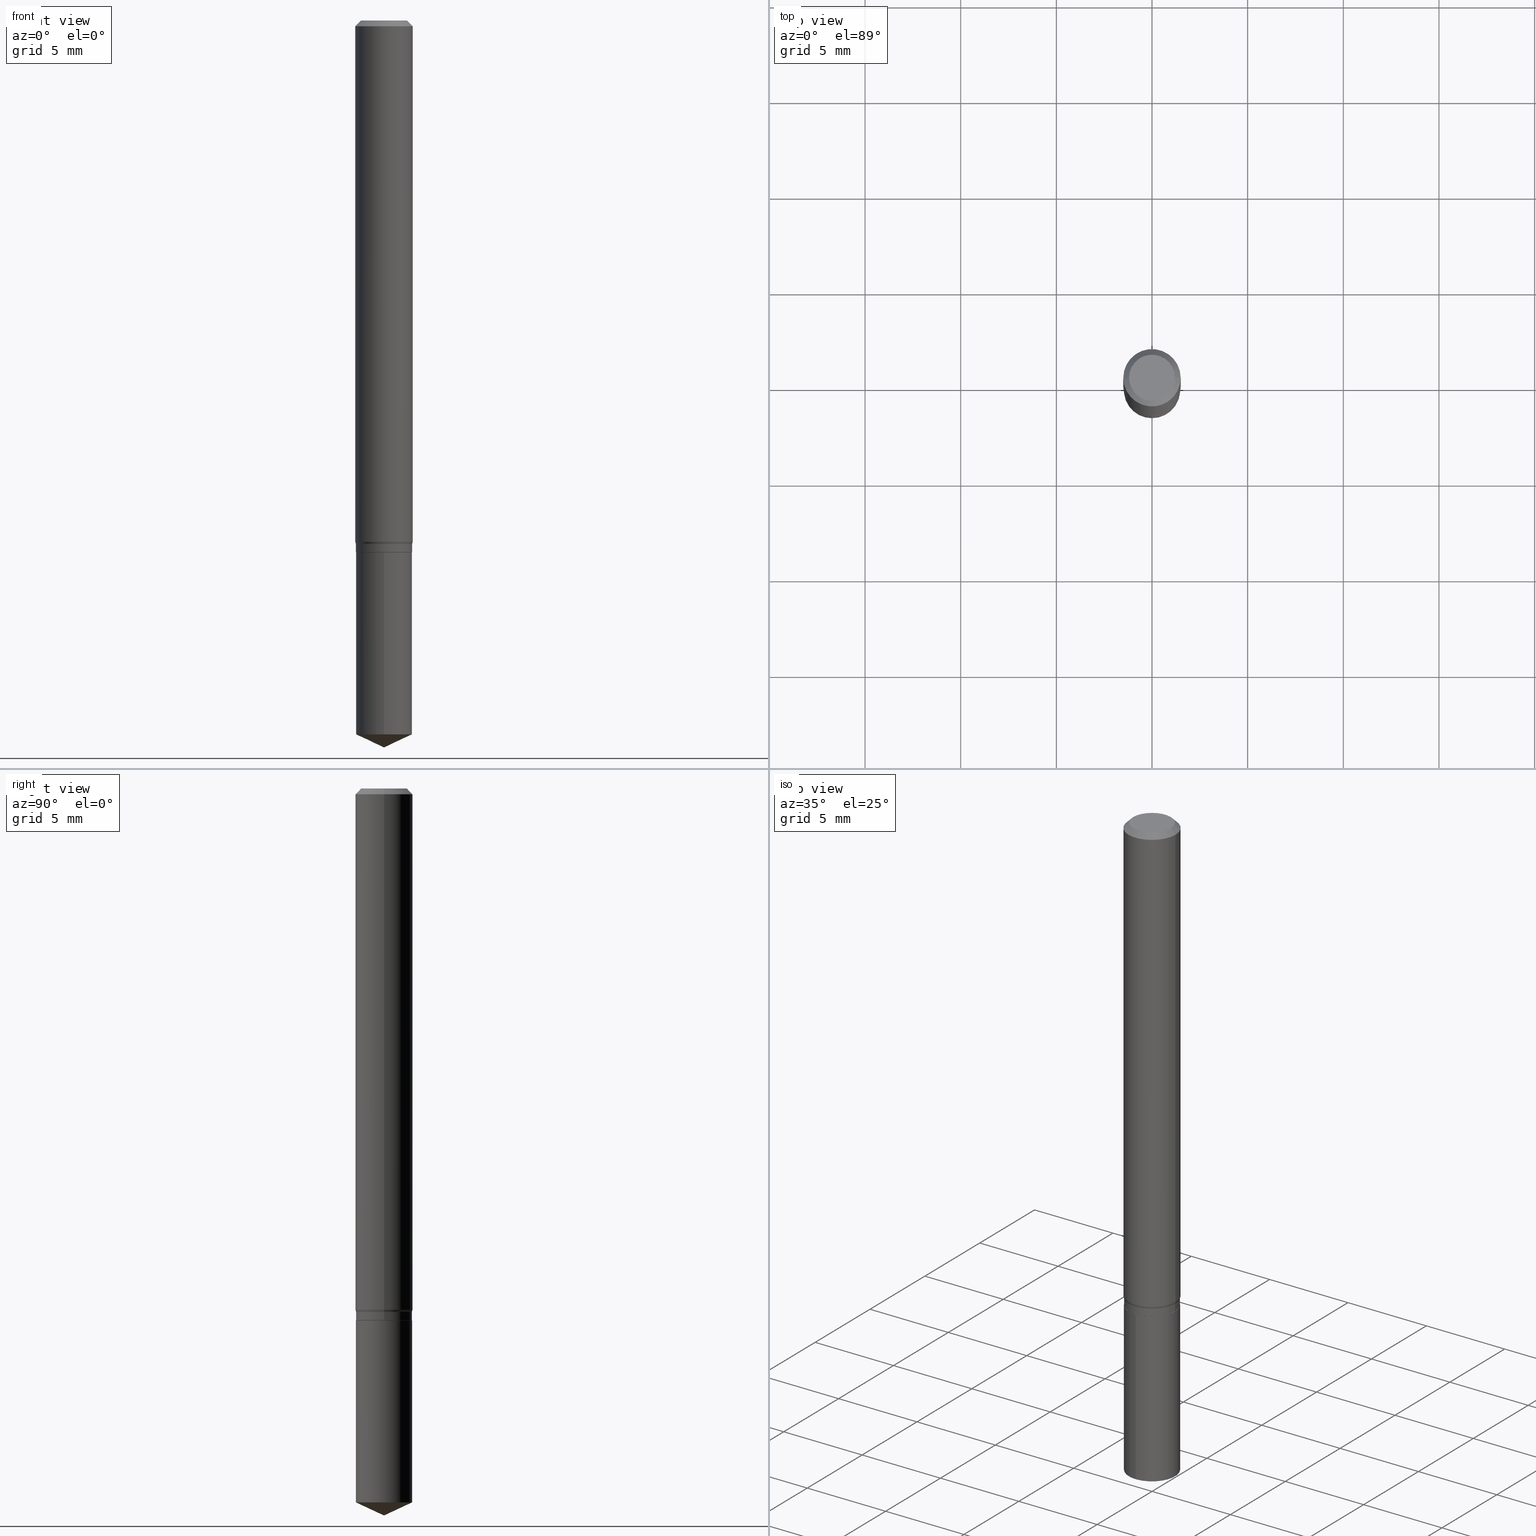
[diagram: canonical four-view strip — front | top / right | iso, engineering-drawing reading convention]
A machine part, canonical four-view strip (front | top / right | iso — engineering-drawing reading convention). The complete STEP part file that produces these views, byte-faithful:
ISO-10303-21;
HEADER;
FILE_DESCRIPTION (( 'STEP AP203' ),
    '1' );
FILE_NAME ('07713.STEP',
    '2024-04-24T01:33:04',
    ( '' ),
    ( '' ),
    'SwSTEP 2.0',
    'SolidWorks 2023',
    '' );
FILE_SCHEMA (( 'CONFIG_CONTROL_DESIGN' ));
ENDSEC;

DATA;
#1 = LINE ( 'NONE', #421, #56 ) ;
#2 = DATE_AND_TIME ( #28, #240 ) ;
#3 = CARTESIAN_POINT ( 'NONE',  ( 2.634014451142010375E-29, -3.760674550067952083E-15, -1.077099999999999946 ) ) ;
#4 = CLOSED_SHELL ( 'NONE', ( #290, #464, #446, #204, #68, #105, #379, #394, #143, #139, #327, #456 ) ) ;
#5 = CIRCLE ( 'NONE', #57, 0.04724000000000000421 ) ;
#6 = VERTEX_POINT ( 'NONE', #117 ) ;
#7 = CARTESIAN_POINT ( 'NONE',  ( 2.676565608369632355E-29, -3.821426325363822773E-15, -1.094500000000000028 ) ) ;
#8 = ORIENTED_EDGE ( 'NONE', *, *, #223, .T. ) ;
#9 = DATE_AND_TIME ( #147, #351 ) ;
#10 = CARTESIAN_POINT ( 'NONE',  ( 0.05734999999999999820, -4.221899234929130680E-15, -1.094500000000000028 ) ) ;
#11 = DIRECTION ( 'NONE',  ( 1.000000000000000000, -6.982962677686266711E-15, 4.876185090822587894E-29 ) ) ;
#12 = LINE ( 'NONE', #116, #141 ) ;
#13 = EDGE_LOOP ( 'NONE', ( #36, #296, #353, #410 ) ) ;
#14 = AXIS2_PLACEMENT_3D ( 'NONE', #237, #206, #356 ) ;
#15 = CIRCLE ( 'NONE', #374, 0.05734999999999999820 ) ;
#16 = DIRECTION ( 'NONE',  ( -2.445458899330790108E-29, 3.491495526022433205E-15, 1.000000000000000000 ) ) ;
#17 = EDGE_CURVE ( 'NONE', #61, #227, #276, .T. ) ;
#18 = CARTESIAN_POINT ( 'NONE',  ( 2.634014451142010375E-29, -3.760674550067952083E-15, -1.077099999999999946 ) ) ;
#19 = CARTESIAN_POINT ( 'NONE',  ( 2.676565608369631794E-29, -3.821426325363822773E-15, -1.094499999999999806 ) ) ;
#20 = DIRECTION ( 'NONE',  ( 1.000000000000000000, -6.982962677686265133E-15, 0.000000000000000000 ) ) ;
#21 = CARTESIAN_POINT ( 'NONE',  ( 0.05784999999999999865, -4.164638940972102208E-15, -1.077099999999999946 ) ) ;
#22 =( GEOMETRIC_REPRESENTATION_CONTEXT ( 3 ) GLOBAL_UNCERTAINTY_ASSIGNED_CONTEXT ( ( #367 ) ) GLOBAL_UNIT_ASSIGNED_CONTEXT ( ( #59, #92, #369 ) ) REPRESENTATION_CONTEXT ( 'NONE', 'WORKASPACE' ) );
#23 = MANIFOLD_SOLID_BREP ( 'Body-Move/Copy2[1]', #487 ) ;
#24 = DIRECTION ( 'NONE',  ( 1.000000000000000000, 0.000000000000000000, 0.000000000000000000 ) ) ;
#25 = FACE_OUTER_BOUND ( 'NONE', #400, .T. ) ;
#26 = ORIENTED_EDGE ( 'NONE', *, *, #416, .T. ) ;
#27 = AXIS2_PLACEMENT_3D ( 'NONE', #362, #438, #91 ) ;
#28 = CALENDAR_DATE ( 2024, 23, 4 ) ;
#29 = EDGE_LOOP ( 'NONE', ( #299, #477, #54, #334 ) ) ;
#30 = EDGE_CURVE ( 'NONE', #106, #33, #442, .T. ) ;
#31 = ORIENTED_EDGE ( 'NONE', *, *, #484, .T. ) ;
#32 = APPROVAL ( #157, 'UNSPECIFIED' ) ;
#33 = VERTEX_POINT ( 'NONE', #80 ) ;
#34 = ORIENTED_EDGE ( 'NONE', *, *, #223, .F. ) ;
#35 = APPROVAL_STATUS ( 'not_yet_approved' ) ;
#36 = ORIENTED_EDGE ( 'NONE', *, *, #317, .T. ) ;
#37 = CARTESIAN_POINT ( 'NONE',  ( -0.05734999999999999820, -3.413930066405405625E-15, -1.094500000000000028 ) ) ;
#38 = FACE_OUTER_BOUND ( 'NONE', #102, .T. ) ;
#39 = APPROVAL_ROLE ( '' ) ;
#40 = DIRECTION ( 'NONE',  ( 1.000000000000000000, -6.982962677686265133E-15, 0.000000000000000000 ) ) ;
#41 = AXIS2_PLACEMENT_3D ( 'NONE', #83, #76, #246 ) ;
#42 = EDGE_CURVE ( 'NONE', #450, #449, #1, .T. ) ;
#43 = ORIENTED_EDGE ( 'NONE', *, *, #403, .F. ) ;
#44 = DIRECTION ( 'NONE',  ( -2.445458899330790108E-29, 3.491495526022433205E-15, 1.000000000000000000 ) ) ;
#45 = CARTESIAN_POINT ( 'NONE',  ( -0.05904999999999999832, -1.473560755423358858E-15, -0.01181000000000006871 ) ) ;
#46 = CARTESIAN_POINT ( 'NONE',  ( -0.05784999999999999865, -3.349625577430734430E-15, -1.077099999999999946 ) ) ;
#47 = DIRECTION ( 'NONE',  ( -2.445468806185136597E-29, 3.491481338843145583E-15, 1.000000000000000000 ) ) ;
#48 = DIRECTION ( 'NONE',  ( 1.000000000000000000, -6.982962677686264344E-15, 0.000000000000000000 ) ) ;
#49 = DIRECTION ( 'NONE',  ( 1.000000000000000000, -6.982962677686266711E-15, 0.000000000000000000 ) ) ;
#50 = AXIS2_PLACEMENT_3D ( 'NONE', #3, #385, #40 ) ;
#51 = FACE_OUTER_BOUND ( 'NONE', #347, .T. ) ;
#52 = DIRECTION ( 'NONE',  ( -2.445468806185136597E-29, 3.491481338843145583E-15, 1.000000000000000000 ) ) ;
#53 = PLANE ( 'NONE',  #27 ) ;
#54 = ORIENTED_EDGE ( 'NONE', *, *, #414, .T. ) ;
#55 = DIRECTION ( 'NONE',  ( -6.982962677686265922E-15, -1.000000000000000000, 2.361147790548196524E-15 ) ) ;
#56 = VECTOR ( 'NONE', #243, 39.37007874015748143 ) ;
#57 = AXIS2_PLACEMENT_3D ( 'NONE', #254, #288, #364 ) ;
#58 = PERSON_AND_ORGANIZATION ( #154, #325 ) ;
#59 =( CONVERSION_BASED_UNIT ( 'INCH', #98 ) LENGTH_UNIT ( ) NAMED_UNIT ( #308 ) );
#60 = PERSON_AND_ORGANIZATION ( #154, #325 ) ;
#61 = VERTEX_POINT ( 'NONE', #391 ) ;
#62 = AXIS2_PLACEMENT_3D ( 'NONE', #211, #283, #248 ) ;
#63 = AXIS2_PLACEMENT_3D ( 'NONE', #205, #467, #48 ) ;
#64 = APPROVAL_PERSON_ORGANIZATION ( #192, #32, #420 ) ;
#65 = VERTEX_POINT ( 'NONE', #194 ) ;
#66 = EDGE_LOOP ( 'NONE', ( #483, #184 ) ) ;
#67 = VERTEX_POINT ( 'NONE', #45 ) ;
#68 = ADVANCED_FACE ( 'NONE', ( #148 ), #428, .T. ) ;
#69 = AXIS2_PLACEMENT_3D ( 'NONE', #19, #133, #212 ) ;
#70 = ORIENTED_EDGE ( 'NONE', *, *, #437, .T. ) ;
#71 = CALENDAR_DATE ( 2024, 23, 4 ) ;
#72 = DIRECTION ( 'NONE',  ( 1.000000000000000000, -6.982962677686265133E-15, 0.000000000000000000 ) ) ;
#73 = PERSON_AND_ORGANIZATION ( #154, #325 ) ;
#74 = DIRECTION ( 'NONE',  ( 1.000000000000000000, -6.982962677686264344E-15, 0.000000000000000000 ) ) ;
#75 = EDGE_CURVE ( 'NONE', #174, #186, #348, .T. ) ;
#76 = DIRECTION ( 'NONE',  ( 2.438088387897960049E-29, -3.491481338843145188E-15, -1.000000000000000000 ) ) ;
#77 = PERSON_AND_ORGANIZATION ( #154, #325 ) ;
#78 = DIRECTION ( 'NONE',  ( -0.2588190451025181305, 5.211531920934529743E-15, 0.9659258262890689783 ) ) ;
#79 = VECTOR ( 'NONE', #399, 39.37007874015748854 ) ;
#80 = CARTESIAN_POINT ( 'NONE',  ( -0.04724000000000000421, 3.504923541997677355E-16, -3.380025165670481712E-19 ) ) ;
#81 = CC_DESIGN_DATE_AND_TIME_ASSIGNMENT ( #9, #196, ( #89 ) ) ;
#82 = DIRECTION ( 'NONE',  ( 1.000000000000000000, -6.982962677686265133E-15, 0.000000000000000000 ) ) ;
#83 = CARTESIAN_POINT ( 'NONE',  ( 4.132873053354867254E-48, -5.900647395337818946E-34, -1.690012582823346072E-19 ) ) ;
#84 = CARTESIAN_POINT ( 'NONE',  ( -4.039643909041237478E-16, -0.05785000000000382198, -1.094499999999999806 ) ) ;
#85 = CARTESIAN_POINT ( 'NONE',  ( 2.888098660104663328E-31, -4.123439461173779030E-17, -0.01181000000000006871 ) ) ;
#86 = LINE ( 'NONE', #122, #435 ) ;
#87 = DIRECTION ( 'NONE',  ( -2.445468806185136597E-29, 3.491481338843145583E-15, 1.000000000000000000 ) ) ;
#88 = AXIS2_PLACEMENT_3D ( 'NONE', #202, #16, #165 ) ;
#89 = SECURITY_CLASSIFICATION ( '', '', #335 ) ;
#90 = CYLINDRICAL_SURFACE ( 'NONE', #466, 0.05905000000000006771 ) ;
#91 = DIRECTION ( 'NONE',  ( 6.982962677686265922E-15, 1.000000000000000000, -3.491495526022433599E-15 ) ) ;
#92 =( NAMED_UNIT ( * ) PLANE_ANGLE_UNIT ( ) SI_UNIT ( $, .RADIAN. ) );
#93 = CARTESIAN_POINT ( 'NONE',  ( -0.05905000000000006771, 4.195754854663396409E-16, -2.904631170795525045E-30 ) ) ;
#94 = CARTESIAN_POINT ( 'NONE',  ( 0.000000000000000000, 0.000000000000000000, 0.000000000000000000 ) ) ;
#95 = VERTEX_POINT ( 'NONE', #164 ) ;
#96 = CONICAL_SURFACE ( 'NONE', #50, 0.05784999999999999865, 0.2617993877991466878 ) ;
#97 = EDGE_CURVE ( 'NONE', #65, #6, #249, .T. ) ;
#98 = LENGTH_MEASURE_WITH_UNIT ( LENGTH_MEASURE( 0.02539999999999999897 ), #404 );
#99 = ORIENTED_EDGE ( 'NONE', *, *, #42, .F. ) ;
#100 = PRODUCT_DEFINITION_SHAPE ( 'NONE', 'NONE',  #432 ) ;
#101 = CC_DESIGN_PERSON_AND_ORGANIZATION_ASSIGNMENT ( #149, #461, ( #432 ) ) ;
#102 = EDGE_LOOP ( 'NONE', ( #112, #229 ) ) ;
#103 = CONICAL_SURFACE ( 'NONE', #338, 0.05734999999999999820, 0.7853981633972775267 ) ;
#104 = CC_DESIGN_SECURITY_CLASSIFICATION ( #89, ( #222 ) ) ;
#105 = ADVANCED_FACE ( 'NONE', ( #393 ), #270, .T. ) ;
#106 = VERTEX_POINT ( 'NONE', #307 ) ;
#107 = ORIENTED_EDGE ( 'NONE', *, *, #242, .T. ) ;
#108 = EDGE_CURVE ( 'NONE', #339, #65, #281, .T. ) ;
#109 = EDGE_LOOP ( 'NONE', ( #70, #341, #132, #415 ) ) ;
#110 = CALENDAR_DATE ( 2024, 23, 4 ) ;
#111 = CONICAL_SURFACE ( 'NONE', #447, 84.42940631927430672, 1.134464013796315784 ) ;
#112 = ORIENTED_EDGE ( 'NONE', *, *, #225, .T. ) ;
#113 = SHAPE_DEFINITION_REPRESENTATION ( #100, #226 ) ;
#114 = CARTESIAN_POINT ( 'NONE',  ( 2.675342873966538993E-29, -3.819680584694400481E-15, -1.093999999999999861 ) ) ;
#115 = CARTESIAN_POINT ( 'NONE',  ( 2.634014451142010375E-29, -3.760674550067952083E-15, -1.077099999999999946 ) ) ;
#116 = CARTESIAN_POINT ( 'NONE',  ( 0.05784999999999999865, -4.039643909041504704E-16, 2.820868264797948733E-30 ) ) ;
#117 = CARTESIAN_POINT ( 'NONE',  ( -0.05784999999999999865, -3.379128594743958630E-15, -1.093999999999999861 ) ) ;
#118 = DIRECTION ( 'NONE',  ( 1.000000000000000000, -6.982962677686266711E-15, 4.876176775795936353E-29 ) ) ;
#119 = CONICAL_SURFACE ( 'NONE', #256, 84.42940631927430672, 1.134464013796315784 ) ;
#120 = CC_DESIGN_APPROVAL ( #387, ( #89 ) ) ;
#121 = PLANE ( 'NONE',  #41 ) ;
#122 = CARTESIAN_POINT ( 'NONE',  ( 0.05784999999999999865, -4.164638940972102208E-15, -1.077099999999999946 ) ) ;
#123 = DIRECTION ( 'NONE',  ( 1.000000000000000000, -6.982962677686265133E-15, 0.000000000000000000 ) ) ;
#124 = CARTESIAN_POINT ( 'NONE',  ( 8.562420094366031687E-30, -6.428233325420959968E-15, -1.094500000000000028 ) ) ;
#125 = LINE ( 'NONE', #171, #79 ) ;
#126 = CARTESIAN_POINT ( 'NONE',  ( 4.110489726372537918E-16, 0.05784999999999485693, -1.469124101975733732 ) ) ;
#127 = CARTESIAN_POINT ( 'NONE',  ( -0.05784999999999999865, -3.379128594743958630E-15, -1.077099999999999946 ) ) ;
#128 = CIRCLE ( 'NONE', #88, 0.05784999999999999865 ) ;
#129 = CONICAL_SURFACE ( 'NONE', #163, 0.05904999999999999832, 0.7853981633974452814 ) ;
#130 = EDGE_CURVE ( 'NONE', #33, #67, #384, .T. ) ;
#131 = LINE ( 'NONE', #93, #406 ) ;
#132 = ORIENTED_EDGE ( 'NONE', *, *, #244, .F. ) ;
#133 = DIRECTION ( 'NONE',  ( -2.445458899330790108E-29, 3.491495526022433205E-15, 1.000000000000000000 ) ) ;
#134 = FACE_OUTER_BOUND ( 'NONE', #151, .T. ) ;
#135 = VECTOR ( 'NONE', #366, 39.37007874015748143 ) ;
#136 = ORIENTED_EDGE ( 'NONE', *, *, #368, .T. ) ;
#137 = PERSON_AND_ORGANIZATION_ROLE ( 'design_supplier' ) ;
#138 = EDGE_LOOP ( 'NONE', ( #413, #233, #295, #298 ) ) ;
#139 = ADVANCED_FACE ( 'NONE', ( #38 ), #121, .F. ) ;
#140 = EDGE_LOOP ( 'NONE', ( #224, #26, #445 ) ) ;
#141 = VECTOR ( 'NONE', #274, 39.37007874015748143 ) ;
#142 = EDGE_CURVE ( 'NONE', #386, #449, #479, .T. ) ;
#143 = ADVANCED_FACE ( 'NONE', ( #326 ), #268, .T. ) ;
#144 = EDGE_LOOP ( 'NONE', ( #337, #378, #31, #273 ) ) ;
#145 = CC_DESIGN_PERSON_AND_ORGANIZATION_ASSIGNMENT ( #58, #215, ( #181 ) ) ;
#146 = ORIENTED_EDGE ( 'NONE', *, *, #414, .F. ) ;
#147 = CALENDAR_DATE ( 2024, 23, 4 ) ;
#148 = FACE_OUTER_BOUND ( 'NONE', #267, .T. ) ;
#149 = PERSON_AND_ORGANIZATION ( #154, #325 ) ;
#150 = FACE_OUTER_BOUND ( 'NONE', #144, .T. ) ;
#151 = EDGE_LOOP ( 'NONE', ( #488, #336, #262, #43 ) ) ;
#152 = PERSON_AND_ORGANIZATION_ROLE ( 'creator' ) ;
#153 = DESIGN_CONTEXT ( 'detailed design', #346, 'design' ) ;
#154 = PERSON ( 'UNSPECIFIED', 'UNSPECIFIED', 'UNSPECIFIED', ('UNSPECIFIED'), ('UNSPECIFIED'), ('UNSPECIFIED') ) ;
#155 = DIRECTION ( 'NONE',  ( -6.982962677686268288E-15, -1.000000000000000000, 3.520397390770455053E-15 ) ) ;
#156 = CARTESIAN_POINT ( 'NONE',  ( 2.623062514542399904E-29, -3.745038087167660552E-15, -1.072621539030916837 ) ) ;
#157 = APPROVAL_STATUS ( 'not_yet_approved' ) ;
#158 = DIRECTION ( 'NONE',  ( -2.445458899330790108E-29, 3.491495526022433599E-15, 1.000000000000000000 ) ) ;
#159 = CARTESIAN_POINT ( 'NONE',  ( 2.675342873966538993E-29, -3.819680584694400481E-15, -1.093999999999999861 ) ) ;
#160 = FACE_OUTER_BOUND ( 'NONE', #13, .T. ) ;
#161 = VECTOR ( 'NONE', #436, 39.37007874015748143 ) ;
#162 = EDGE_CURVE ( 'NONE', #67, #407, #478, .T. ) ;
#163 = AXIS2_PLACEMENT_3D ( 'NONE', #439, #253, #323 ) ;
#164 = CARTESIAN_POINT ( 'NONE',  ( -4.039643909041145280E-16, -0.05785000000000512649, -1.469124101975733065 ) ) ;
#165 = DIRECTION ( 'NONE',  ( -6.982962677686265922E-15, -1.000000000000000000, 2.361147790548196524E-15 ) ) ;
#166 = DIRECTION ( 'NONE',  ( -2.445468806185136877E-29, 3.491481338843145188E-15, 1.000000000000000000 ) ) ;
#167 = CC_DESIGN_PERSON_AND_ORGANIZATION_ASSIGNMENT ( #77, #300, ( #89 ) ) ;
#168 = CARTESIAN_POINT ( 'NONE',  ( 0.000000000000000000, 0.000000000000000000, 0.000000000000000000 ) ) ;
#169 = DIRECTION ( 'NONE',  ( -2.445468806185136597E-29, 3.491481338843145583E-15, 1.000000000000000000 ) ) ;
#170 = FACE_OUTER_BOUND ( 'NONE', #140, .T. ) ;
#171 = CARTESIAN_POINT ( 'NONE',  ( 3.658672935554494692E-29, -5.223595400746700193E-15, -1.496099999999999985 ) ) ;
#172 = CONICAL_SURFACE ( 'NONE', #333, 0.05784999999999999865, 0.2617993877991466878 ) ;
#173 = CC_DESIGN_PERSON_AND_ORGANIZATION_ASSIGNMENT ( #342, #137, ( #222 ) ) ;
#174 = VERTEX_POINT ( 'NONE', #127 ) ;
#175 = CARTESIAN_POINT ( 'NONE',  ( 2.676565608369632355E-29, -3.821426325363822773E-15, -1.094500000000000028 ) ) ;
#176 = DIRECTION ( 'NONE',  ( -2.445468806185136597E-29, 3.491481338843145583E-15, 1.000000000000000000 ) ) ;
#177 = AXIS2_PLACEMENT_3D ( 'NONE', #159, #465, #123 ) ;
#178 = VECTOR ( 'NONE', #245, 39.37007874015748854 ) ;
#179 = ORIENTED_EDGE ( 'NONE', *, *, #260, .T. ) ;
#180 = AXIS2_PLACEMENT_3D ( 'NONE', #94, #398, #24 ) ;
#181 = PRODUCT ( '07713', '07713', '', ( #289 ) ) ;
#182 = EDGE_CURVE ( 'NONE', #61, #67, #131, .T. ) ;
#183 = ORIENTED_EDGE ( 'NONE', *, *, #244, .T. ) ;
#184 = ORIENTED_EDGE ( 'NONE', *, *, #429, .F. ) ;
#185 = MANIFOLD_SOLID_BREP ( 'Body-Move/Copy2[2]', #4 ) ;
#186 = VERTEX_POINT ( 'NONE', #21 ) ;
#187 = CIRCLE ( 'NONE', #349, 0.05784999999999999865 ) ;
#188 = LOCAL_TIME ( 21, 33, 4.000000000000000000, #266 ) ;
#189 = ORIENTED_EDGE ( 'NONE', *, *, #287, .T. ) ;
#190 = DATE_AND_TIME ( #232, #297 ) ;
#191 = CARTESIAN_POINT ( 'NONE',  ( 2.676565608369631794E-29, -3.821426325363822773E-15, -1.094499999999999806 ) ) ;
#192 = PERSON_AND_ORGANIZATION ( #154, #325 ) ;
#193 = CYLINDRICAL_SURFACE ( 'NONE', #332, 0.05905000000000006771 ) ;
#194 = CARTESIAN_POINT ( 'NONE',  ( 0.05784999999999999865, -4.223644975598551395E-15, -1.093999999999999861 ) ) ;
#195 = EDGE_CURVE ( 'NONE', #95, #450, #251, .T. ) ;
#196 = DATE_TIME_ROLE ( 'classification_date' ) ;
#197 = AXIS2_PLACEMENT_3D ( 'NONE', #425, #382, #11 ) ;
#198 = CIRCLE ( 'NONE', #261, 0.05905000000000013016 ) ;
#199 = CARTESIAN_POINT ( 'NONE',  ( 0.000000000000000000, 0.000000000000000000, 0.000000000000000000 ) ) ;
#200 = ORIENTED_EDGE ( 'NONE', *, *, #416, .F. ) ;
#201 = DATE_TIME_ROLE ( 'creation_date' ) ;
#202 = CARTESIAN_POINT ( 'NONE',  ( 2.676565608369631794E-29, -3.821426325363822773E-15, -1.094499999999999806 ) ) ;
#203 = EDGE_LOOP ( 'NONE', ( #431, #444, #183, #451 ) ) ;
#204 = ADVANCED_FACE ( 'NONE', ( #51 ), #172, .T. ) ;
#205 = CARTESIAN_POINT ( 'NONE',  ( 2.676565608369632355E-29, -3.821426325363822773E-15, -1.094500000000000028 ) ) ;
#206 = DIRECTION ( 'NONE',  ( -2.445468806185136597E-29, 3.491481338843145583E-15, 1.000000000000000000 ) ) ;
#207 = DIRECTION ( 'NONE',  ( -6.982962677686265922E-15, -1.000000000000000000, 4.722295581096393049E-15 ) ) ;
#208 = AXIS2_PLACEMENT_3D ( 'NONE', #318, #47, #358 ) ;
#209 = AXIS2_PLACEMENT_3D ( 'NONE', #241, #235, #392 ) ;
#210 = CARTESIAN_POINT ( 'NONE',  ( 3.592693452449994614E-29, -5.129424701352268102E-15, -1.469124101975733288 ) ) ;
#211 = CARTESIAN_POINT ( 'NONE',  ( 2.888098660104663328E-31, -4.123439461173779030E-17, -0.01181000000000006871 ) ) ;
#212 = DIRECTION ( 'NONE',  ( -6.982962677686265922E-15, -1.000000000000000000, 2.361147790548196524E-15 ) ) ;
#213 = CARTESIAN_POINT ( 'NONE',  ( 0.05905000000000013016, -4.157382033285035472E-15, -1.072621539030916837 ) ) ;
#214 = DIRECTION ( 'NONE',  ( 1.000000000000000000, -6.982962677686265133E-15, 0.000000000000000000 ) ) ;
#215 = PERSON_AND_ORGANIZATION_ROLE ( 'design_owner' ) ;
#216 = FACE_OUTER_BOUND ( 'NONE', #373, .T. ) ;
#217 = CC_DESIGN_PERSON_AND_ORGANIZATION_ASSIGNMENT ( #73, #152, ( #222 ) ) ;
#218 = ADVANCED_FACE ( 'NONE', ( #285 ), #53, .F. ) ;
#219 = VECTOR ( 'NONE', #458, 39.37007874015748143 ) ;
#220 = CIRCLE ( 'NONE', #63, 0.05734999999999999820 ) ;
#221 = ORIENTED_EDGE ( 'NONE', *, *, #368, .F. ) ;
#222 = PRODUCT_DEFINITION_FORMATION_WITH_SPECIFIED_SOURCE ( 'ANY', '', #181, .NOT_KNOWN. ) ;
#223 = EDGE_CURVE ( 'NONE', #186, #174, #426, .T. ) ;
#224 = ORIENTED_EDGE ( 'NONE', *, *, #242, .F. ) ;
#225 = EDGE_CURVE ( 'NONE', #33, #106, #5, .T. ) ;
#226 = ADVANCED_BREP_SHAPE_REPRESENTATION ( '07713', ( #23, #185, #180 ), #22 ) ;
#227 = VERTEX_POINT ( 'NONE', #213 ) ;
#228 = APPROVAL ( #35, 'UNSPECIFIED' ) ;
#229 = ORIENTED_EDGE ( 'NONE', *, *, #30, .T. ) ;
#230 = COORDINATED_UNIVERSAL_TIME_OFFSET ( 5, 0, .BEHIND. ) ;
#231 = CARTESIAN_POINT ( 'NONE',  ( 0.05734999999999999820, -4.221899234929130680E-15, -1.094500000000000028 ) ) ;
#232 = CALENDAR_DATE ( 2024, 23, 4 ) ;
#233 = ORIENTED_EDGE ( 'NONE', *, *, #225, .F. ) ;
#234 = APPLICATION_PROTOCOL_DEFINITION ( 'international standard', 'config_control_design', 1994, #346 ) ;
#235 = DIRECTION ( 'NONE',  ( -2.445468806185136597E-29, 3.491481338843145583E-15, 1.000000000000000000 ) ) ;
#236 = EDGE_CURVE ( 'NONE', #106, #407, #252, .T. ) ;
#237 = CARTESIAN_POINT ( 'NONE',  ( 0.000000000000000000, 0.000000000000000000, 0.000000000000000000 ) ) ;
#238 = DATE_AND_TIME ( #71, #370 ) ;
#239 = AXIS2_PLACEMENT_3D ( 'NONE', #124, #316, #433 ) ;
#240 = LOCAL_TIME ( 21, 33, 4.000000000000000000, #381 ) ;
#241 = CARTESIAN_POINT ( 'NONE',  ( 2.676565608369632355E-29, -3.821426325363822773E-15, -1.094500000000000028 ) ) ;
#242 = EDGE_CURVE ( 'NONE', #294, #450, #125, .T. ) ;
#243 = DIRECTION ( 'NONE',  ( -2.445458899330790108E-29, 3.491495526022433599E-15, 1.000000000000000000 ) ) ;
#244 = EDGE_CURVE ( 'NONE', #407, #67, #303, .T. ) ;
#245 = DIRECTION ( 'NONE',  ( -6.328713451373372534E-15, -0.9063077870366490485, 0.4226182617407011066 ) ) ;
#246 = DIRECTION ( 'NONE',  ( -1.000000000000000000, 6.982962677686265922E-15, -4.876176775795935793E-29 ) ) ;
#247 = CARTESIAN_POINT ( 'NONE',  ( -0.05784999999999999865, 4.110489726372179479E-16, -2.845603949712462575E-30 ) ) ;
#248 = DIRECTION ( 'NONE',  ( -1.000000000000000000, 6.982962677686266711E-15, 0.000000000000000000 ) ) ;
#249 = CIRCLE ( 'NONE', #177, 0.05784999999999999865 ) ;
#250 = DIRECTION ( 'NONE',  ( -2.445458899330790108E-29, 3.491495526022433205E-15, 1.000000000000000000 ) ) ;
#251 = CIRCLE ( 'NONE', #388, 0.05784999999999999865 ) ;
#252 = LINE ( 'NONE', #320, #135 ) ;
#253 = DIRECTION ( 'NONE',  ( 2.445468806185136597E-29, -3.491481338843145583E-15, -1.000000000000000000 ) ) ;
#254 = CARTESIAN_POINT ( 'NONE',  ( 8.265746106709734507E-48, -1.180129479067563789E-33, -3.380025165646692144E-19 ) ) ;
#255 = DIRECTION ( 'NONE',  ( -6.982962677686265922E-15, -1.000000000000000000, 4.722295581096393049E-15 ) ) ;
#256 = AXIS2_PLACEMENT_3D ( 'NONE', #328, #473, #330 ) ;
#257 = ORIENTED_EDGE ( 'NONE', *, *, #287, .F. ) ;
#258 = CARTESIAN_POINT ( 'NONE',  ( 0.05905000000000006771, -4.123439461173745257E-16, 2.879382386107503723E-30 ) ) ;
#259 = VERTEX_POINT ( 'NONE', #422 ) ;
#260 = EDGE_CURVE ( 'NONE', #95, #386, #457, .T. ) ;
#261 = AXIS2_PLACEMENT_3D ( 'NONE', #284, #52, #214 ) ;
#262 = ORIENTED_EDGE ( 'NONE', *, *, #108, .T. ) ;
#263 = CC_DESIGN_APPROVAL ( #228, ( #222 ) ) ;
#264 = ORIENTED_EDGE ( 'NONE', *, *, #195, .F. ) ;
#265 = ORIENTED_EDGE ( 'NONE', *, *, #437, .F. ) ;
#266 = COORDINATED_UNIVERSAL_TIME_OFFSET ( 5, 0, .BEHIND. ) ;
#267 = EDGE_LOOP ( 'NONE', ( #377, #405, #34, #146 ) ) ;
#268 = CONICAL_SURFACE ( 'NONE', #62, 0.05904999999999999832, 0.7853981633974452814 ) ;
#269 = AXIS2_PLACEMENT_3D ( 'NONE', #191, #434, #402 ) ;
#270 = CYLINDRICAL_SURFACE ( 'NONE', #208, 0.05784999999999999865 ) ;
#271 = ADVANCED_FACE ( 'NONE', ( #319 ), #111, .T. ) ;
#272 = CARTESIAN_POINT ( 'NONE',  ( 0.05904999999999999832, -4.535783407291118600E-16, -0.01181000000000006871 ) ) ;
#273 = ORIENTED_EDGE ( 'NONE', *, *, #162, .F. ) ;
#274 = DIRECTION ( 'NONE',  ( -2.445468806185136877E-29, 3.491481338843145188E-15, 1.000000000000000000 ) ) ;
#275 = DIRECTION ( 'NONE',  ( 1.000000000000000000, -6.982962677686265133E-15, 0.000000000000000000 ) ) ;
#276 = CIRCLE ( 'NONE', #291, 0.05905000000000013016 ) ;
#277 = VECTOR ( 'NONE', #158, 39.37007874015748143 ) ;
#278 = LINE ( 'NONE', #37, #411 ) ;
#279 = ORIENTED_EDGE ( 'NONE', *, *, #42, .T. ) ;
#280 = LINE ( 'NONE', #424, #178 ) ;
#281 = LINE ( 'NONE', #231, #219 ) ;
#282 = DIRECTION ( 'NONE',  ( -0.7071067811864267805, 7.493145998869918709E-15, 0.7071067811866682540 ) ) ;
#283 = DIRECTION ( 'NONE',  ( 2.445468806185136597E-29, -3.491481338843145583E-15, -1.000000000000000000 ) ) ;
#284 = CARTESIAN_POINT ( 'NONE',  ( 2.623062514542399904E-29, -3.745038087167660552E-15, -1.072621539030916837 ) ) ;
#285 = FACE_OUTER_BOUND ( 'NONE', #311, .T. ) ;
#286 = FACE_OUTER_BOUND ( 'NONE', #109, .T. ) ;
#287 = EDGE_CURVE ( 'NONE', #449, #386, #128, .T. ) ;
#288 = DIRECTION ( 'NONE',  ( -2.445468806185136597E-29, 3.491481338843145583E-15, 1.000000000000000000 ) ) ;
#289 = MECHANICAL_CONTEXT ( 'NONE', #409, 'mechanical' ) ;
#290 = ADVANCED_FACE ( 'NONE', ( #160 ), #418, .T. ) ;
#291 = AXIS2_PLACEMENT_3D ( 'NONE', #156, #460, #275 ) ;
#292 = AXIS2_PLACEMENT_3D ( 'NONE', #321, #472, #361 ) ;
#293 = DIRECTION ( 'NONE',  ( -2.445458899330790108E-29, 3.491495526022433205E-15, 1.000000000000000000 ) ) ;
#294 = VERTEX_POINT ( 'NONE', #430 ) ;
#295 = ORIENTED_EDGE ( 'NONE', *, *, #130, .T. ) ;
#296 = ORIENTED_EDGE ( 'NONE', *, *, #340, .T. ) ;
#297 = LOCAL_TIME ( 21, 33, 4.000000000000000000, #312 ) ;
#298 = ORIENTED_EDGE ( 'NONE', *, *, #162, .T. ) ;
#299 = ORIENTED_EDGE ( 'NONE', *, *, #329, .F. ) ;
#300 = PERSON_AND_ORGANIZATION_ROLE ( 'classification_officer' ) ;
#301 = DIRECTION ( 'NONE',  ( -2.445468806185136597E-29, 3.491481338843145583E-15, 1.000000000000000000 ) ) ;
#302 = AXIS2_PLACEMENT_3D ( 'NONE', #85, #396, #49 ) ;
#303 = CIRCLE ( 'NONE', #292, 0.05904999999999999832 ) ;
#304 = APPROVAL_ROLE ( '' ) ;
#305 = APPROVAL_PERSON_ORGANIZATION ( #60, #228, #304 ) ;
#306 = LINE ( 'NONE', #247, #480 ) ;
#307 = CARTESIAN_POINT ( 'NONE',  ( 0.04724000000000000421, -3.852183633974369345E-16, -3.380025165621689721E-19 ) ) ;
#308 = DIMENSIONAL_EXPONENTS ( 1.000000000000000000, 0.000000000000000000, 0.000000000000000000, 0.000000000000000000, 0.000000000000000000, 0.000000000000000000, 0.000000000000000000 ) ;
#309 = EDGE_CURVE ( 'NONE', #450, #95, #315, .T. ) ;
#310 = LINE ( 'NONE', #46, #453 ) ;
#311 = EDGE_LOOP ( 'NONE', ( #376, #189 ) ) ;
#312 = COORDINATED_UNIVERSAL_TIME_OFFSET ( 5, 0, .BEHIND. ) ;
#313 = DIRECTION ( 'NONE',  ( -2.445468806185136597E-29, 3.491481338843145583E-15, 1.000000000000000000 ) ) ;
#314 = ORIENTED_EDGE ( 'NONE', *, *, #75, .T. ) ;
#315 = CIRCLE ( 'NONE', #397, 0.05784999999999999865 ) ;
#316 = DIRECTION ( 'NONE',  ( -2.438088387897960049E-29, 3.491481338843145188E-15, 1.000000000000000000 ) ) ;
#317 = EDGE_CURVE ( 'NONE', #339, #259, #15, .T. ) ;
#318 = CARTESIAN_POINT ( 'NONE',  ( 0.000000000000000000, 0.000000000000000000, 0.000000000000000000 ) ) ;
#319 = FACE_OUTER_BOUND ( 'NONE', #489, .T. ) ;
#320 = CARTESIAN_POINT ( 'NONE',  ( 0.05904999999999999832, -4.463468013801466955E-16, -0.01181000000000006871 ) ) ;
#321 = CARTESIAN_POINT ( 'NONE',  ( 2.888098660104663328E-31, -4.123439461173779030E-17, -0.01181000000000006871 ) ) ;
#322 = AXIS2_PLACEMENT_3D ( 'NONE', #115, #301, #72 ) ;
#323 = DIRECTION ( 'NONE',  ( -1.000000000000000000, 6.982962677686266711E-15, 0.000000000000000000 ) ) ;
#324 = AXIS2_PLACEMENT_3D ( 'NONE', #408, #293, #55 ) ;
#325 = ORGANIZATION ( 'UNSPECIFIED', 'UNSPECIFIED', '' ) ;
#326 = FACE_OUTER_BOUND ( 'NONE', #138, .T. ) ;
#327 = ADVANCED_FACE ( 'NONE', ( #427 ), #469, .F. ) ;
#328 = CARTESIAN_POINT ( 'NONE',  ( -9.261924752013118283E-28, 1.322368428517963298E-13, 37.87397874015748300 ) ) ;
#329 = EDGE_CURVE ( 'NONE', #6, #174, #306, .T. ) ;
#330 = DIRECTION ( 'NONE',  ( -6.982962677686268288E-15, -1.000000000000000000, 3.520397390770455053E-15 ) ) ;
#331 = CARTESIAN_POINT ( 'NONE',  ( 4.110489726372538411E-16, 0.05784999999999617531, -1.094500000000000028 ) ) ;
#332 = AXIS2_PLACEMENT_3D ( 'NONE', #199, #352, #118 ) ;
#333 = AXIS2_PLACEMENT_3D ( 'NONE', #474, #169, #20 ) ;
#334 = ORIENTED_EDGE ( 'NONE', *, *, #75, .F. ) ;
#335 = SECURITY_CLASSIFICATION_LEVEL ( 'unclassified' ) ;
#336 = ORIENTED_EDGE ( 'NONE', *, *, #429, .T. ) ;
#337 = ORIENTED_EDGE ( 'NONE', *, *, #182, .F. ) ;
#338 = AXIS2_PLACEMENT_3D ( 'NONE', #175, #471, #443 ) ;
#339 = VERTEX_POINT ( 'NONE', #10 ) ;
#340 = EDGE_CURVE ( 'NONE', #259, #6, #278, .T. ) ;
#341 = ORIENTED_EDGE ( 'NONE', *, *, #182, .T. ) ;
#342 = PERSON_AND_ORGANIZATION ( #154, #325 ) ;
#343 = CC_DESIGN_DATE_AND_TIME_ASSIGNMENT ( #238, #201, ( #432 ) ) ;
#344 = DIRECTION ( 'NONE',  ( -0.7071067811865453523, 2.468850131082234184E-15, -0.7071067811865496822 ) ) ;
#345 = FACE_OUTER_BOUND ( 'NONE', #475, .T. ) ;
#346 = APPLICATION_CONTEXT ( 'configuration controlled 3d designs of mechanical parts and assemblies' ) ;
#347 = EDGE_LOOP ( 'NONE', ( #8, #454, #265, #221 ) ) ;
#348 = CIRCLE ( 'NONE', #322, 0.05784999999999999865 ) ;
#349 = AXIS2_PLACEMENT_3D ( 'NONE', #114, #395, #82 ) ;
#350 = EDGE_CURVE ( 'NONE', #174, #61, #310, .T. ) ;
#351 = LOCAL_TIME ( 21, 33, 4.000000000000000000, #490 ) ;
#352 = DIRECTION ( 'NONE',  ( -2.445468806185136597E-29, 3.491481338843145583E-15, 1.000000000000000000 ) ) ;
#353 = ORIENTED_EDGE ( 'NONE', *, *, #97, .F. ) ;
#354 = APPROVAL_DATE_TIME ( #2, #32 ) ;
#355 = DIRECTION ( 'NONE',  ( -2.445468806185136877E-29, 3.491481338843145188E-15, 1.000000000000000000 ) ) ;
#356 = DIRECTION ( 'NONE',  ( 1.000000000000000000, -6.982962677686265922E-15, 4.876176775795935793E-29 ) ) ;
#357 = CARTESIAN_POINT ( 'NONE',  ( 3.592693452449994614E-29, -5.129424701352268102E-15, -1.469124101975733288 ) ) ;
#358 = DIRECTION ( 'NONE',  ( 1.000000000000000000, -6.982962677686265922E-15, 4.876176775795935793E-29 ) ) ;
#359 = VECTOR ( 'NONE', #344, 39.37007874015748143 ) ;
#360 = AXIS2_PLACEMENT_3D ( 'NONE', #18, #87, #470 ) ;
#361 = DIRECTION ( 'NONE',  ( 1.000000000000000000, -6.982962677686266711E-15, 0.000000000000000000 ) ) ;
#362 = CARTESIAN_POINT ( 'NONE',  ( 2.676565608369631794E-29, -3.821426325363822773E-15, -1.094499999999999806 ) ) ;
#363 = DIRECTION ( 'NONE',  ( 1.000000000000000000, -6.982962677686266711E-15, 4.876176775795936353E-29 ) ) ;
#364 = DIRECTION ( 'NONE',  ( 1.000000000000000000, -6.982962677686266711E-15, 4.876185090822587894E-29 ) ) ;
#365 = FACE_OUTER_BOUND ( 'NONE', #203, .T. ) ;
#366 = DIRECTION ( 'NONE',  ( 0.7071067811865453523, -7.319954787623248157E-15, -0.7071067811865496822 ) ) ;
#367 = UNCERTAINTY_MEASURE_WITH_UNIT (LENGTH_MEASURE( 1.000000000000000082E-05 ), #59, 'distance_accuracy_value', 'NONE');
#368 = EDGE_CURVE ( 'NONE', #186, #227, #86, .T. ) ;
#369 =( NAMED_UNIT ( * ) SI_UNIT ( $, .STERADIAN. ) SOLID_ANGLE_UNIT ( ) );
#370 = LOCAL_TIME ( 21, 33, 4.000000000000000000, #230 ) ;
#371 = CYLINDRICAL_SURFACE ( 'NONE', #324, 0.05784999999999999865 ) ;
#372 = LINE ( 'NONE', #258, #161 ) ;
#373 = EDGE_LOOP ( 'NONE', ( #99, #481, #179, #257 ) ) ;
#374 = AXIS2_PLACEMENT_3D ( 'NONE', #7, #313, #74 ) ;
#375 = CC_DESIGN_APPROVAL ( #32, ( #432 ) ) ;
#376 = ORIENTED_EDGE ( 'NONE', *, *, #142, .T. ) ;
#377 = ORIENTED_EDGE ( 'NONE', *, *, #97, .T. ) ;
#378 = ORIENTED_EDGE ( 'NONE', *, *, #17, .T. ) ;
#379 = ADVANCED_FACE ( 'NONE', ( #345 ), #96, .T. ) ;
#380 = ORIENTED_EDGE ( 'NONE', *, *, #350, .F. ) ;
#381 = COORDINATED_UNIVERSAL_TIME_OFFSET ( 5, 0, .BEHIND. ) ;
#382 = DIRECTION ( 'NONE',  ( -2.445468806185136597E-29, 3.491481338843145583E-15, 1.000000000000000000 ) ) ;
#383 = APPROVAL_DATE_TIME ( #190, #228 ) ;
#384 = LINE ( 'NONE', #423, #359 ) ;
#385 = DIRECTION ( 'NONE',  ( -2.445468806185136597E-29, 3.491481338843145583E-15, 1.000000000000000000 ) ) ;
#386 = VERTEX_POINT ( 'NONE', #84 ) ;
#387 = APPROVAL ( #389, 'UNSPECIFIED' ) ;
#388 = AXIS2_PLACEMENT_3D ( 'NONE', #210, #441, #255 ) ;
#389 = APPROVAL_STATUS ( 'not_yet_approved' ) ;
#390 = CARTESIAN_POINT ( 'NONE',  ( -4.039643909041237478E-16, -0.05785000000000382198, -1.094499999999999806 ) ) ;
#391 = CARTESIAN_POINT ( 'NONE',  ( -0.05905000000000013016, -3.325462601701321059E-15, -1.072621539030916837 ) ) ;
#392 = DIRECTION ( 'NONE',  ( 1.000000000000000000, -6.982962677686264344E-15, 0.000000000000000000 ) ) ;
#393 = FACE_OUTER_BOUND ( 'NONE', #29, .T. ) ;
#394 = ADVANCED_FACE ( 'NONE', ( #150 ), #193, .T. ) ;
#395 = DIRECTION ( 'NONE',  ( -2.445468806185136597E-29, 3.491481338843145583E-15, 1.000000000000000000 ) ) ;
#396 = DIRECTION ( 'NONE',  ( -2.445468806185136597E-29, 3.491481338843145583E-15, 1.000000000000000000 ) ) ;
#397 = AXIS2_PLACEMENT_3D ( 'NONE', #357, #250, #207 ) ;
#398 = DIRECTION ( 'NONE',  ( 0.000000000000000000, 0.000000000000000000, 1.000000000000000000 ) ) ;
#399 = DIRECTION ( 'NONE',  ( 6.439704144417028775E-15, 0.9063077870366521571, 0.4226182617406948894 ) ) ;
#400 = EDGE_LOOP ( 'NONE', ( #419, #279, #468, #417 ) ) ;
#401 = CYLINDRICAL_SURFACE ( 'NONE', #69, 0.05784999999999999865 ) ;
#402 = DIRECTION ( 'NONE',  ( -6.982962677686265922E-15, -1.000000000000000000, 2.361147790548196524E-15 ) ) ;
#403 = EDGE_CURVE ( 'NONE', #6, #65, #187, .T. ) ;
#404 =( LENGTH_UNIT ( ) NAMED_UNIT ( * ) SI_UNIT ( $, .METRE. ) );
#405 = ORIENTED_EDGE ( 'NONE', *, *, #329, .T. ) ;
#406 = VECTOR ( 'NONE', #166, 39.37007874015748143 ) ;
#407 = VERTEX_POINT ( 'NONE', #272 ) ;
#408 = CARTESIAN_POINT ( 'NONE',  ( 2.676565608369631794E-29, -3.821426325363822773E-15, -1.094499999999999806 ) ) ;
#409 = APPLICATION_CONTEXT ( 'configuration controlled 3d designs of mechanical parts and assemblies' ) ;
#410 = ORIENTED_EDGE ( 'NONE', *, *, #108, .F. ) ;
#411 = VECTOR ( 'NONE', #282, 39.37007874015748143 ) ;
#412 = APPROVAL_PERSON_ORGANIZATION ( #452, #387, #39 ) ;
#413 = ORIENTED_EDGE ( 'NONE', *, *, #236, .F. ) ;
#414 = EDGE_CURVE ( 'NONE', #65, #186, #12, .T. ) ;
#415 = ORIENTED_EDGE ( 'NONE', *, *, #484, .F. ) ;
#416 = EDGE_CURVE ( 'NONE', #294, #95, #280, .T. ) ;
#417 = ORIENTED_EDGE ( 'NONE', *, *, #260, .F. ) ;
#418 = CONICAL_SURFACE ( 'NONE', #209, 0.05734999999999999820, 0.7853981633972775267 ) ;
#419 = ORIENTED_EDGE ( 'NONE', *, *, #195, .T. ) ;
#420 = APPROVAL_ROLE ( '' ) ;
#421 = CARTESIAN_POINT ( 'NONE',  ( 4.110489726372446213E-16, 0.05784999999999617531, -1.094500000000000028 ) ) ;
#422 = CARTESIAN_POINT ( 'NONE',  ( -0.05734999999999999820, -3.411280839231294424E-15, -1.094500000000000028 ) ) ;
#423 = CARTESIAN_POINT ( 'NONE',  ( -0.05904999999999999832, 3.711095515056362547E-16, -0.01181000000000006871 ) ) ;
#424 = CARTESIAN_POINT ( 'NONE',  ( 3.658651059288795076E-29, -5.223626456482161457E-15, -1.496099999999999985 ) ) ;
#425 = CARTESIAN_POINT ( 'NONE',  ( 8.265746106709734507E-48, -1.180129479067563789E-33, -3.380025165646692144E-19 ) ) ;
#426 = CIRCLE ( 'NONE', #360, 0.05784999999999999865 ) ;
#427 = FACE_OUTER_BOUND ( 'NONE', #66, .T. ) ;
#428 = CYLINDRICAL_SURFACE ( 'NONE', #14, 0.05784999999999999865 ) ;
#429 = EDGE_CURVE ( 'NONE', #259, #339, #220, .T. ) ;
#430 = CARTESIAN_POINT ( 'NONE',  ( 3.658651059288794515E-29, -5.223626456482161457E-15, -1.496099999999999985 ) ) ;
#431 = ORIENTED_EDGE ( 'NONE', *, *, #30, .F. ) ;
#432 = PRODUCT_DEFINITION ( 'UNKNOWN', '', #222, #153 ) ;
#433 = DIRECTION ( 'NONE',  ( 1.000000000000000000, -6.982962677686265922E-15, 4.876176775795935793E-29 ) ) ;
#434 = DIRECTION ( 'NONE',  ( -2.445458899330790108E-29, 3.491495526022433205E-15, 1.000000000000000000 ) ) ;
#435 = VECTOR ( 'NONE', #462, 39.37007874015748143 ) ;
#436 = DIRECTION ( 'NONE',  ( -2.445468806185136877E-29, 3.491481338843145188E-15, 1.000000000000000000 ) ) ;
#437 = EDGE_CURVE ( 'NONE', #227, #61, #198, .T. ) ;
#438 = DIRECTION ( 'NONE',  ( 2.445458899330789267E-29, -3.491495526022433599E-15, -1.000000000000000000 ) ) ;
#439 = CARTESIAN_POINT ( 'NONE',  ( 2.888098660104663328E-31, -4.123439461173779030E-17, -0.01181000000000006871 ) ) ;
#440 = PRODUCT_RELATED_PRODUCT_CATEGORY ( 'detail', '', ( #181 ) ) ;
#441 = DIRECTION ( 'NONE',  ( -2.445458899330790108E-29, 3.491495526022433205E-15, 1.000000000000000000 ) ) ;
#442 = CIRCLE ( 'NONE', #197, 0.04724000000000000421 ) ;
#443 = DIRECTION ( 'NONE',  ( 1.000000000000000000, -6.982962677686264344E-15, 0.000000000000000000 ) ) ;
#444 = ORIENTED_EDGE ( 'NONE', *, *, #236, .T. ) ;
#445 = ORIENTED_EDGE ( 'NONE', *, *, #309, .F. ) ;
#446 = ADVANCED_FACE ( 'NONE', ( #286 ), #90, .T. ) ;
#447 = AXIS2_PLACEMENT_3D ( 'NONE', #459, #44, #155 ) ;
#448 = ADVANCED_FACE ( 'NONE', ( #216 ), #371, .T. ) ;
#449 = VERTEX_POINT ( 'NONE', #331 ) ;
#450 = VERTEX_POINT ( 'NONE', #126 ) ;
#451 = ORIENTED_EDGE ( 'NONE', *, *, #130, .F. ) ;
#452 = PERSON_AND_ORGANIZATION ( #154, #325 ) ;
#453 = VECTOR ( 'NONE', #78, 39.37007874015748143 ) ;
#454 = ORIENTED_EDGE ( 'NONE', *, *, #350, .T. ) ;
#455 = DATE_AND_TIME ( #110, #188 ) ;
#456 = ADVANCED_FACE ( 'NONE', ( #134 ), #103, .T. ) ;
#457 = LINE ( 'NONE', #390, #277 ) ;
#458 = DIRECTION ( 'NONE',  ( 0.7071067811864267805, -2.468850131080992517E-15, 0.7071067811866682540 ) ) ;
#459 = CARTESIAN_POINT ( 'NONE',  ( -9.261924752013118283E-28, 1.322368428517963298E-13, 37.87397874015748300 ) ) ;
#460 = DIRECTION ( 'NONE',  ( -2.445468806185136597E-29, 3.491481338843145583E-15, 1.000000000000000000 ) ) ;
#461 = PERSON_AND_ORGANIZATION_ROLE ( 'creator' ) ;
#462 = DIRECTION ( 'NONE',  ( 0.2588190451025181305, 1.565188264969647211E-15, 0.9659258262890689783 ) ) ;
#463 = ADVANCED_FACE ( 'NONE', ( #170 ), #119, .T. ) ;
#464 = ADVANCED_FACE ( 'NONE', ( #365 ), #129, .T. ) ;
#465 = DIRECTION ( 'NONE',  ( -2.445468806185136597E-29, 3.491481338843145583E-15, 1.000000000000000000 ) ) ;
#466 = AXIS2_PLACEMENT_3D ( 'NONE', #168, #176, #363 ) ;
#467 = DIRECTION ( 'NONE',  ( -2.445468806185136597E-29, 3.491481338843145583E-15, 1.000000000000000000 ) ) ;
#468 = ORIENTED_EDGE ( 'NONE', *, *, #142, .F. ) ;
#469 = PLANE ( 'NONE',  #239 ) ;
#470 = DIRECTION ( 'NONE',  ( 1.000000000000000000, -6.982962677686265133E-15, 0.000000000000000000 ) ) ;
#471 = DIRECTION ( 'NONE',  ( -2.445468806185136597E-29, 3.491481338843145583E-15, 1.000000000000000000 ) ) ;
#472 = DIRECTION ( 'NONE',  ( -2.445468806185136597E-29, 3.491481338843145583E-15, 1.000000000000000000 ) ) ;
#473 = DIRECTION ( 'NONE',  ( -2.445458899330790108E-29, 3.491495526022433205E-15, 1.000000000000000000 ) ) ;
#474 = CARTESIAN_POINT ( 'NONE',  ( 2.634014451142010375E-29, -3.760674550067952083E-15, -1.077099999999999946 ) ) ;
#475 = EDGE_LOOP ( 'NONE', ( #380, #314, #136, #486 ) ) ;
#476 = APPLICATION_PROTOCOL_DEFINITION ( 'international standard', 'config_control_design', 1994, #409 ) ;
#477 = ORIENTED_EDGE ( 'NONE', *, *, #403, .T. ) ;
#478 = CIRCLE ( 'NONE', #302, 0.05904999999999999832 ) ;
#479 = CIRCLE ( 'NONE', #269, 0.05784999999999999865 ) ;
#480 = VECTOR ( 'NONE', #355, 39.37007874015748143 ) ;
#481 = ORIENTED_EDGE ( 'NONE', *, *, #309, .T. ) ;
#482 = APPROVAL_DATE_TIME ( #455, #387 ) ;
#483 = ORIENTED_EDGE ( 'NONE', *, *, #317, .F. ) ;
#484 = EDGE_CURVE ( 'NONE', #227, #407, #372, .T. ) ;
#485 = ADVANCED_FACE ( 'NONE', ( #25 ), #401, .T. ) ;
#486 = ORIENTED_EDGE ( 'NONE', *, *, #17, .F. ) ;
#487 = CLOSED_SHELL ( 'NONE', ( #485, #271, #463, #448, #218 ) ) ;
#488 = ORIENTED_EDGE ( 'NONE', *, *, #340, .F. ) ;
#489 = EDGE_LOOP ( 'NONE', ( #200, #107, #264 ) ) ;
#490 = COORDINATED_UNIVERSAL_TIME_OFFSET ( 5, 0, .BEHIND. ) ;
ENDSEC;
END-ISO-10303-21;
